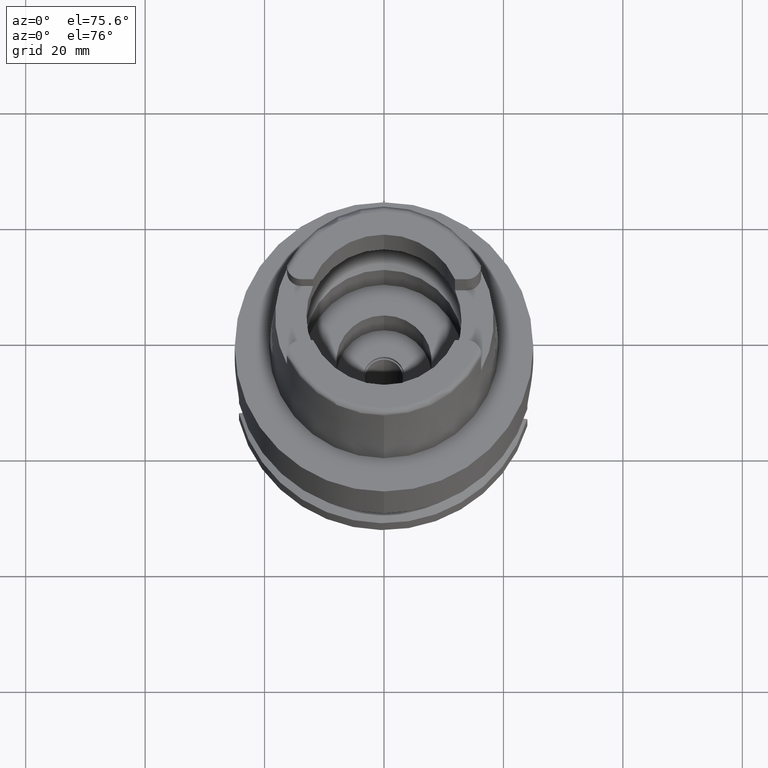
[diagram: clean part render]
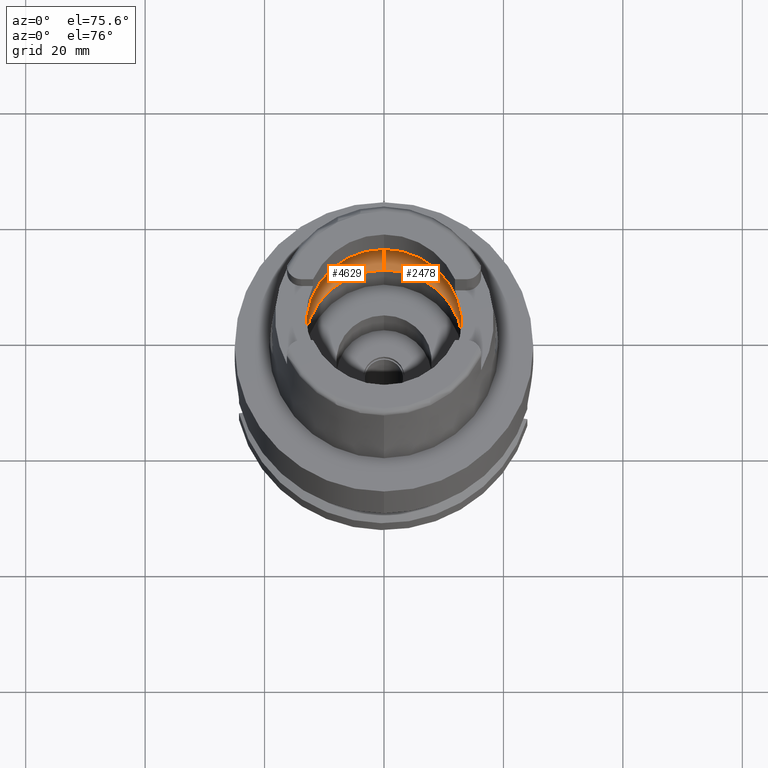
[diagram: same view with one multi-face feature highlighted, each face labeled with its STEP entity id]
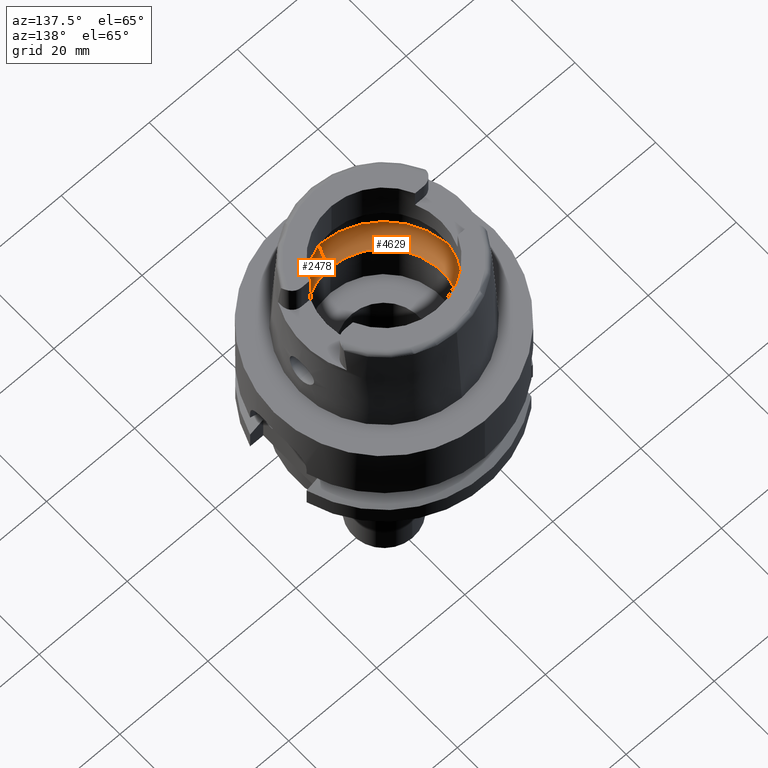
[diagram: same view with one multi-face feature highlighted, each face labeled with its STEP entity id]
A machine part, auxiliary view. The highlighted faces form ONE feature: a constant-radius fillet chain: 2 tangent blend faces with common blend radius 6 mm. The faces share edges in the B-rep.
A second angle (auxiliary view) of the same feature is appended — it is thin or edge-on in the first view.
Their STEP definitions:
[1] entity #4629 (Torus):
#163 = CARTESIAN_POINT ( 'NONE',  ( -15.93232478452559775, 1.492187398017092104, 4.878657686336348220 ) ) ;
#215 = DIRECTION ( 'NONE',  ( 0.0000000000000000000, 0.5500000000000007105, -0.8351646544245028281 ) ) ;
#266 = AXIS2_PLACEMENT_3D ( 'NONE', #952, #3918, #1354 ) ;
#274 = DIRECTION ( 'NONE',  ( 0.0000000000000000000, -1.000000000000000000, 0.0000000000000000000 ) ) ;
#304 = EDGE_CURVE ( 'NONE', #1109, #3729, #654, .T. ) ;
#380 = CARTESIAN_POINT ( 'NONE',  ( 0.0000000000000000000, 16.00000000000000000, 5.060987926546999915 ) ) ;
#386 = CARTESIAN_POINT ( 'NONE',  ( -15.94864986986848088, -1.215670264419580038, 4.739689632191214308 ) ) ;
#436 = CARTESIAN_POINT ( 'NONE',  ( -15.97257437545092351, -0.3116243740667323237, 4.511998739929603985 ) ) ;
#654 = CIRCLE ( 'NONE', #2852, 5.999999999999993783 ) ;
#808 = EDGE_CURVE ( 'NONE', #1109, #4611, #2236, .T. ) ;
#952 = CARTESIAN_POINT ( 'NONE',  ( 0.0000000000000000000, 0.0000000000000000000, 5.060987926546999915 ) ) ;
#957 = CARTESIAN_POINT ( 'NONE',  ( 0.0000000000000000000, 10.00000000000000000, 5.060987926546999915 ) ) ;
#1107 = CARTESIAN_POINT ( 'NONE',  ( -15.96429634217003901, -0.7702834507305567069, 4.596413340185097063 ) ) ;
#1109 = VERTEX_POINT ( 'NONE', #3282 ) ;
#1124 = DIRECTION ( 'NONE',  ( 0.0000000000000000000, -0.5500000000000007105, -0.8351646544245028281 ) ) ;
#1187 = TOROIDAL_SURFACE ( 'NONE', #2198, 10.00000000000000000, 6.000000000000000000 ) ;
#1342 = VERTEX_POINT ( 'NONE', #1907 ) ;
#1354 = DIRECTION ( 'NONE',  ( -0.9940227218040297297, 0.1091733874958031730, 0.0000000000000000000 ) ) ;
#1463 = ORIENTED_EDGE ( 'NONE', *, *, #1702, .F. ) ;
#1570 = DIRECTION ( 'NONE',  ( 0.0000000000000000000, 1.000000000000000000, 0.0000000000000000000 ) ) ;
#1695 = AXIS2_PLACEMENT_3D ( 'NONE', #4041, #4853, #1124 ) ;
#1702 = EDGE_CURVE ( 'NONE', #4611, #4674, #2244, .T. ) ;
#1785 = AXIS2_PLACEMENT_3D ( 'NONE', #1893, #4483, #274 ) ;
#1893 = CARTESIAN_POINT ( 'NONE',  ( 0.0000000000000000000, 0.0000000000000000000, 5.060987926546999915 ) ) ;
#1907 = CARTESIAN_POINT ( 'NONE',  ( -15.90436354886000103, 1.746774199932999982, 5.060987926546999915 ) ) ;
#1952 = CARTESIAN_POINT ( 'NONE',  ( -15.97371681168999835, 0.0000000000000000000, 4.500000000000000000 ) ) ;
#2029 = EDGE_CURVE ( 'NONE', #1342, #3729, #2247, .T. ) ;
#2042 = CARTESIAN_POINT ( 'NONE',  ( -15.96958484365655195, 0.6197264642308047966, 4.547968511270795489 ) ) ;
#2124 = ORIENTED_EDGE ( 'NONE', *, *, #808, .F. ) ;
#2166 = CARTESIAN_POINT ( 'NONE',  ( 0.0000000000000000000, 0.0000000000000000000, 5.060987926546999915 ) ) ;
#2198 = AXIS2_PLACEMENT_3D ( 'NONE', #2166, #4810, #3319 ) ;
#2236 = CIRCLE ( 'NONE', #2858, 13.29999999999999893 ) ;
#2244 = CIRCLE ( 'NONE', #1695, 5.999999999999993783 ) ;
#2247 = CIRCLE ( 'NONE', #266, 16.00000000000000355 ) ;
#2459 = CARTESIAN_POINT ( 'NONE',  ( -15.90436354886000103, 1.746774199932999982, 5.060987926546999915 ) ) ;
#2489 = CARTESIAN_POINT ( 'NONE',  ( 0.0000000000000000000, -13.29999999999999893, 0.04999999999997999794 ) ) ;
#2629 = CARTESIAN_POINT ( 'NONE',  ( -15.96788301839121083, -0.6178717088625486076, 4.560032715578000939 ) ) ;
#2660 = CARTESIAN_POINT ( 'NONE',  ( -15.90436354886000103, -1.746774199932999982, 5.060987926546999915 ) ) ;
#2851 = ORIENTED_EDGE ( 'NONE', *, *, #3284, .T. ) ;
#2852 = AXIS2_PLACEMENT_3D ( 'NONE', #957, #3602, #215 ) ;
#2858 = AXIS2_PLACEMENT_3D ( 'NONE', #4560, #3067, #1570 ) ;
#2968 = CARTESIAN_POINT ( 'NONE',  ( 0.0000000000000000000, -16.00000000000000000, 5.060987926546999915 ) ) ;
#3053 = CARTESIAN_POINT ( 'NONE',  ( -15.90436354886000103, -1.746774199932999982, 5.060987926546999915 ) ) ;
#3067 = DIRECTION ( 'NONE',  ( 0.0000000000000000000, 0.0000000000000000000, 1.000000000000000000 ) ) ;
#3172 = CARTESIAN_POINT ( 'NONE',  ( -15.97371681168999835, 0.0000000000000000000, 4.500000000000000000 ) ) ;
#3282 = CARTESIAN_POINT ( 'NONE',  ( 0.0000000000000000000, 13.29999999999999893, 0.04999999999997999794 ) ) ;
#3284 = EDGE_CURVE ( 'NONE', #1342, #4232, #4740, .T. ) ;
#3319 = DIRECTION ( 'NONE',  ( 0.0000000000000000000, 1.000000000000000000, 0.0000000000000000000 ) ) ;
#3345 = ORIENTED_EDGE ( 'NONE', *, *, #2029, .F. ) ;
#3382 = EDGE_CURVE ( 'NONE', #4674, #4233, #4786, .T. ) ;
#3515 = ORIENTED_EDGE ( 'NONE', *, *, #3382, .F. ) ;
#3602 = DIRECTION ( 'NONE',  ( 1.000000000000000000, 0.0000000000000000000, 0.0000000000000000000 ) ) ;
#3624 = CARTESIAN_POINT ( 'NONE',  ( -15.97371681169006052, 0.3134710081564753836, 4.499999999999994671 ) ) ;
#3729 = VERTEX_POINT ( 'NONE', #380 ) ;
#3918 = DIRECTION ( 'NONE',  ( 0.0000000000000000000, 0.0000000000000000000, -1.000000000000000000 ) ) ;
#3919 = CARTESIAN_POINT ( 'NONE',  ( -15.94857604487235747, 1.217788018211786838, 4.740383037803764132 ) ) ;
#4041 = CARTESIAN_POINT ( 'NONE',  ( 0.0000000000000000000, -10.00000000000000000, 5.060987926546999915 ) ) ;
#4057 = B_SPLINE_CURVE_WITH_KNOTS ( 'NONE', 3,
 ( #1952, #4148, #436, #2629, #1107, #386, #4099, #3053 ),
 .UNSPECIFIED., .F., .F.,
 ( 4, 2, 2, 4 ),
 ( 0.0000000000000000000, 0.2500000000000001110, 0.5000000000000002220, 1.000000000000000000 ),
 .UNSPECIFIED. ) ;
#4099 = CARTESIAN_POINT ( 'NONE',  ( -15.93232817643072963, -1.492156514751046270, 4.878635568326478378 ) ) ;
#4148 = CARTESIAN_POINT ( 'NONE',  ( -15.97371681169006408, -0.1567165258584433118, 4.499999999999995559 ) ) ;
#4232 = VERTEX_POINT ( 'NONE', #4605 ) ;
#4233 = VERTEX_POINT ( 'NONE', #2660 ) ;
#4337 = ORIENTED_EDGE ( 'NONE', *, *, #304, .T. ) ;
#4483 = DIRECTION ( 'NONE',  ( 0.0000000000000000000, 0.0000000000000000000, -1.000000000000000000 ) ) ;
#4560 = CARTESIAN_POINT ( 'NONE',  ( 0.0000000000000000000, 0.0000000000000000000, 0.04999999999997999794 ) ) ;
#4605 = CARTESIAN_POINT ( 'NONE',  ( -15.97371681168999835, 0.0000000000000000000, 4.500000000000000000 ) ) ;
#4611 = VERTEX_POINT ( 'NONE', #2489 ) ;
#4629 = ADVANCED_FACE ( 'NONE', ( #4788 ), #1187, .F. ) ;
#4674 = VERTEX_POINT ( 'NONE', #2968 ) ;
#4704 = EDGE_CURVE ( 'NONE', #4232, #4233, #4057, .T. ) ;
#4740 = B_SPLINE_CURVE_WITH_KNOTS ( 'NONE', 3,
 ( #2459, #163, #3919, #2042, #3624, #3172 ),
 .UNSPECIFIED., .F., .F.,
 ( 4, 2, 4 ),
 ( 0.0000000000000000000, 0.5000000000000000000, 1.000000000000000000 ),
 .UNSPECIFIED. ) ;
#4786 = CIRCLE ( 'NONE', #1785, 16.00000000000000000 ) ;
#4788 = FACE_OUTER_BOUND ( 'NONE', #4844, .T. ) ;
#4810 = DIRECTION ( 'NONE',  ( 0.0000000000000000000, 0.0000000000000000000, 1.000000000000000000 ) ) ;
#4844 = EDGE_LOOP ( 'NONE', ( #3515, #1463, #2124, #4337, #3345, #2851, #4860 ) ) ;
#4853 = DIRECTION ( 'NONE',  ( -1.000000000000000000, 0.0000000000000000000, 0.0000000000000000000 ) ) ;
#4860 = ORIENTED_EDGE ( 'NONE', *, *, #4704, .T. ) ;
[2] entity #2478 (Torus):
#189 = CIRCLE ( 'NONE', #1135, 16.00000000000000355 ) ;
#193 = CARTESIAN_POINT ( 'NONE',  ( 15.97257434987010782, 0.3116277137608031711, 4.511998986532995026 ) ) ;
#215 = DIRECTION ( 'NONE',  ( 0.0000000000000000000, 0.5500000000000007105, -0.8351646544245028281 ) ) ;
#218 = DIRECTION ( 'NONE',  ( 0.0000000000000000000, 0.0000000000000000000, 1.000000000000000000 ) ) ;
#238 = CARTESIAN_POINT ( 'NONE',  ( 15.97371681168999835, 0.0000000000000000000, 4.500000000000000000 ) ) ;
#304 = EDGE_CURVE ( 'NONE', #1109, #3729, #654, .T. ) ;
#354 = DIRECTION ( 'NONE',  ( 0.9940227218040297297, -0.1091733874958031730, 0.0000000000000000000 ) ) ;
#380 = CARTESIAN_POINT ( 'NONE',  ( 0.0000000000000000000, 16.00000000000000000, 5.060987926546999915 ) ) ;
#458 = CARTESIAN_POINT ( 'NONE',  ( 15.96958492904785842, -0.6197198222201277806, 4.547967507674249177 ) ) ;
#595 = CARTESIAN_POINT ( 'NONE',  ( 0.0000000000000000000, 0.0000000000000000000, 5.060987926546999915 ) ) ;
#654 = CIRCLE ( 'NONE', #2852, 5.999999999999993783 ) ;
#679 = CARTESIAN_POINT ( 'NONE',  ( 15.90436354886000103, -1.746774199932999982, 5.060987926546999915 ) ) ;
#689 = ORIENTED_EDGE ( 'NONE', *, *, #2336, .T. ) ;
#704 = DIRECTION ( 'NONE',  ( 0.0000000000000000000, 0.0000000000000000000, -1.000000000000000000 ) ) ;
#797 = ORIENTED_EDGE ( 'NONE', *, *, #1583, .F. ) ;
#854 = CARTESIAN_POINT ( 'NONE',  ( 15.94857663168870054, -1.217775663229403449, 4.740377999533179398 ) ) ;
#909 = EDGE_LOOP ( 'NONE', ( #689, #2487, #3768, #1930, #2242, #797, #4282 ) ) ;
#957 = CARTESIAN_POINT ( 'NONE',  ( 0.0000000000000000000, 10.00000000000000000, 5.060987926546999915 ) ) ;
#1064 = DIRECTION ( 'NONE',  ( 0.0000000000000000000, 1.000000000000000000, 0.0000000000000000000 ) ) ;
#1109 = VERTEX_POINT ( 'NONE', #3282 ) ;
#1124 = DIRECTION ( 'NONE',  ( 0.0000000000000000000, -0.5500000000000007105, -0.8351646544245028281 ) ) ;
#1135 = AXIS2_PLACEMENT_3D ( 'NONE', #595, #704, #354 ) ;
#1158 = AXIS2_PLACEMENT_3D ( 'NONE', #2094, #218, #1732 ) ;
#1263 = AXIS2_PLACEMENT_3D ( 'NONE', #1433, #1852, #1064 ) ;
#1316 = TOROIDAL_SURFACE ( 'NONE', #1158, 10.00000000000000000, 6.000000000000000000 ) ;
#1376 = B_SPLINE_CURVE_WITH_KNOTS ( 'NONE', 3,
 ( #679, #1949, #854, #458, #4641, #3077 ),
 .UNSPECIFIED., .F., .F.,
 ( 4, 2, 4 ),
 ( 0.0000000000000000000, 0.5000000000000000000, 1.000000000000000000 ),
 .UNSPECIFIED. ) ;
#1405 = CARTESIAN_POINT ( 'NONE',  ( 15.96429602300544026, 0.7702945528852326307, 4.596416340419696489 ) ) ;
#1433 = CARTESIAN_POINT ( 'NONE',  ( 0.0000000000000000000, 0.0000000000000000000, 5.060987926546999915 ) ) ;
#1506 = CARTESIAN_POINT ( 'NONE',  ( 15.90436354886000103, -1.746774199932999982, 5.060987926546999915 ) ) ;
#1531 = CARTESIAN_POINT ( 'NONE',  ( 15.90436354886000103, 1.746774199932999982, 5.060987926546999915 ) ) ;
#1538 = CIRCLE ( 'NONE', #3829, 13.29999999999999893 ) ;
#1583 = EDGE_CURVE ( 'NONE', #2645, #4674, #189, .T. ) ;
#1666 = B_SPLINE_CURVE_WITH_KNOTS ( 'NONE', 3,
 ( #238, #3228, #193, #4744, #1405, #4027, #2168, #3678 ),
 .UNSPECIFIED., .F., .F.,
 ( 4, 2, 2, 4 ),
 ( 0.0000000000000000000, 0.2500000000000000000, 0.5000000000000001110, 1.000000000000000000 ),
 .UNSPECIFIED. ) ;
#1684 = EDGE_CURVE ( 'NONE', #4611, #1109, #1538, .T. ) ;
#1695 = AXIS2_PLACEMENT_3D ( 'NONE', #4041, #4853, #1124 ) ;
#1702 = EDGE_CURVE ( 'NONE', #4611, #4674, #2244, .T. ) ;
#1732 = DIRECTION ( 'NONE',  ( 0.0000000000000000000, 1.000000000000000000, 0.0000000000000000000 ) ) ;
#1752 = EDGE_CURVE ( 'NONE', #2645, #4426, #1376, .T. ) ;
#1852 = DIRECTION ( 'NONE',  ( 0.0000000000000000000, 0.0000000000000000000, -1.000000000000000000 ) ) ;
#1930 = ORIENTED_EDGE ( 'NONE', *, *, #1684, .F. ) ;
#1949 = CARTESIAN_POINT ( 'NONE',  ( 15.93232508316994078, -1.492184678863050840, 4.878655738929293051 ) ) ;
#2094 = CARTESIAN_POINT ( 'NONE',  ( 0.0000000000000000000, 0.0000000000000000000, 5.060987926546999915 ) ) ;
#2168 = CARTESIAN_POINT ( 'NONE',  ( 15.93232788324995930, 1.492159184159390861, 4.878637480106073454 ) ) ;
#2242 = ORIENTED_EDGE ( 'NONE', *, *, #1702, .T. ) ;
#2244 = CIRCLE ( 'NONE', #1695, 5.999999999999993783 ) ;
#2336 = EDGE_CURVE ( 'NONE', #4426, #4700, #1666, .T. ) ;
#2478 = ADVANCED_FACE ( 'NONE', ( #2880 ), #1316, .F. ) ;
#2487 = ORIENTED_EDGE ( 'NONE', *, *, #4023, .F. ) ;
#2489 = CARTESIAN_POINT ( 'NONE',  ( 0.0000000000000000000, -13.29999999999999893, 0.04999999999997999794 ) ) ;
#2645 = VERTEX_POINT ( 'NONE', #1506 ) ;
#2852 = AXIS2_PLACEMENT_3D ( 'NONE', #957, #3602, #215 ) ;
#2880 = FACE_OUTER_BOUND ( 'NONE', #909, .T. ) ;
#2968 = CARTESIAN_POINT ( 'NONE',  ( 0.0000000000000000000, -16.00000000000000000, 5.060987926546999915 ) ) ;
#3077 = CARTESIAN_POINT ( 'NONE',  ( 15.97371681168999835, 0.0000000000000000000, 4.500000000000000000 ) ) ;
#3228 = CARTESIAN_POINT ( 'NONE',  ( 15.97371681169005697, 0.1567182340011634700, 4.499999999999993783 ) ) ;
#3282 = CARTESIAN_POINT ( 'NONE',  ( 0.0000000000000000000, 13.29999999999999893, 0.04999999999997999794 ) ) ;
#3368 = CIRCLE ( 'NONE', #1263, 16.00000000000000000 ) ;
#3602 = DIRECTION ( 'NONE',  ( 1.000000000000000000, 0.0000000000000000000, 0.0000000000000000000 ) ) ;
#3678 = CARTESIAN_POINT ( 'NONE',  ( 15.90436354886000103, 1.746774199932999982, 5.060987926546999915 ) ) ;
#3729 = VERTEX_POINT ( 'NONE', #380 ) ;
#3768 = ORIENTED_EDGE ( 'NONE', *, *, #304, .F. ) ;
#3829 = AXIS2_PLACEMENT_3D ( 'NONE', #4516, #4490, #4143 ) ;
#3928 = CARTESIAN_POINT ( 'NONE',  ( 15.97371681168999835, 0.0000000000000000000, 4.500000000000000000 ) ) ;
#4023 = EDGE_CURVE ( 'NONE', #3729, #4700, #3368, .T. ) ;
#4027 = CARTESIAN_POINT ( 'NONE',  ( 15.94864951726164115, 1.215676056358694579, 4.739692531514736906 ) ) ;
#4041 = CARTESIAN_POINT ( 'NONE',  ( 0.0000000000000000000, -10.00000000000000000, 5.060987926546999915 ) ) ;
#4143 = DIRECTION ( 'NONE',  ( 0.0000000000000000000, -1.000000000000000000, 0.0000000000000000000 ) ) ;
#4282 = ORIENTED_EDGE ( 'NONE', *, *, #1752, .T. ) ;
#4426 = VERTEX_POINT ( 'NONE', #3928 ) ;
#4490 = DIRECTION ( 'NONE',  ( 0.0000000000000000000, 0.0000000000000000000, 1.000000000000000000 ) ) ;
#4516 = CARTESIAN_POINT ( 'NONE',  ( 0.0000000000000000000, 0.0000000000000000000, 0.04999999999997999794 ) ) ;
#4611 = VERTEX_POINT ( 'NONE', #2489 ) ;
#4641 = CARTESIAN_POINT ( 'NONE',  ( 15.97371681169006052, -0.3134675342327712944, 4.499999999999994671 ) ) ;
#4674 = VERTEX_POINT ( 'NONE', #2968 ) ;
#4700 = VERTEX_POINT ( 'NONE', #1531 ) ;
#4744 = CARTESIAN_POINT ( 'NONE',  ( 15.96788288921056242, 0.6178781596219176109, 4.560033950163237648 ) ) ;
#4853 = DIRECTION ( 'NONE',  ( -1.000000000000000000, 0.0000000000000000000, 0.0000000000000000000 ) ) ;